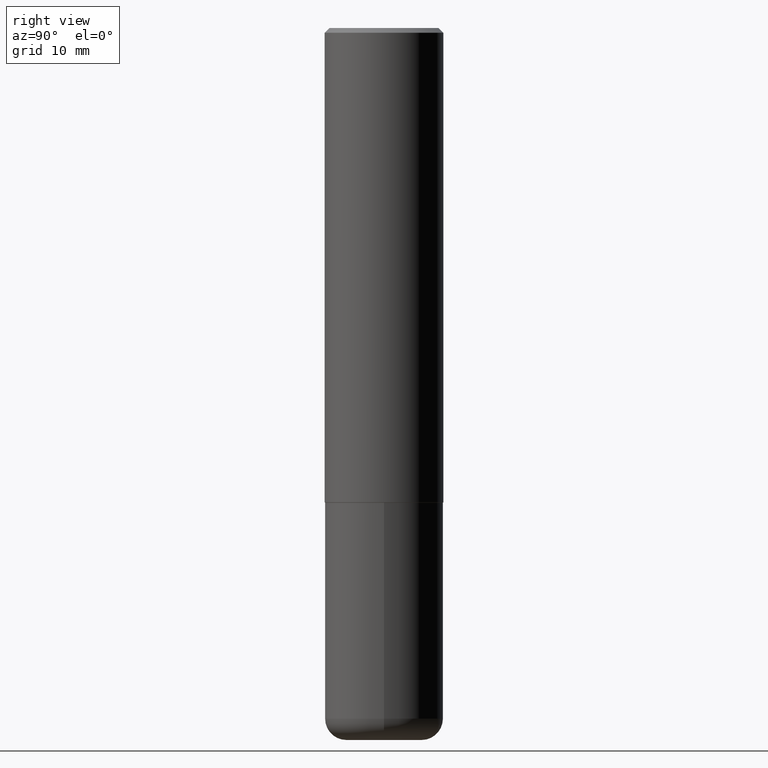
[diagram: clean part render]
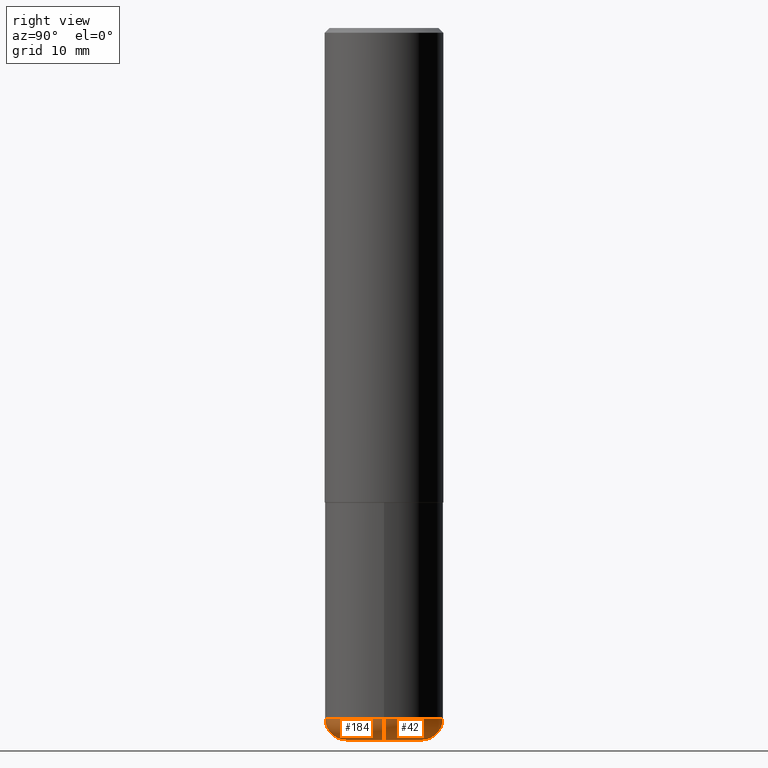
[diagram: same view with one multi-face feature highlighted, each face labeled with its STEP entity id]
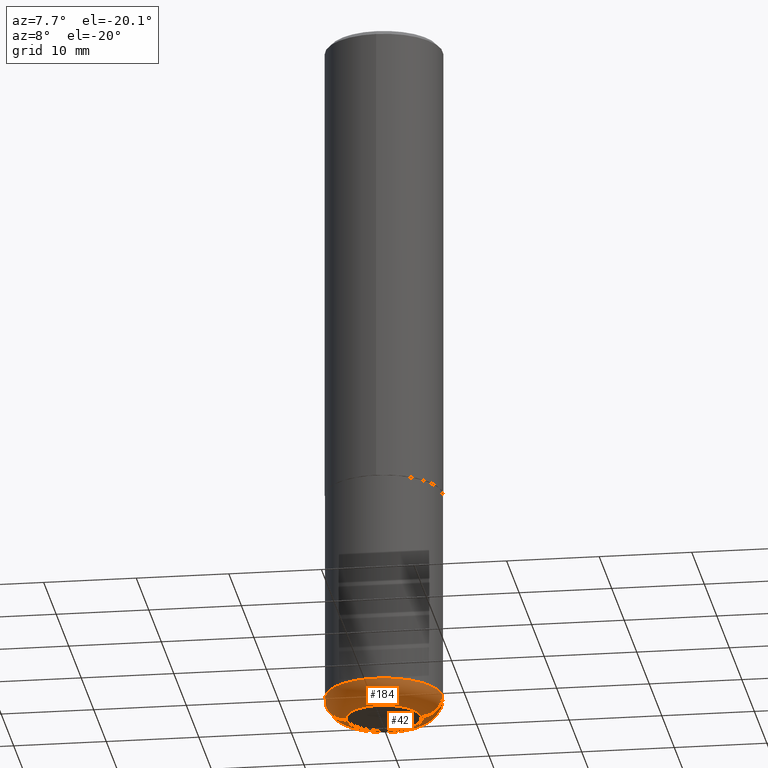
[diagram: same view with one multi-face feature highlighted, each face labeled with its STEP entity id]
A machine part, right view. The highlighted faces form ONE feature: a constant-radius fillet chain: 2 tangent blend faces with common blend radius 2.286 mm. The faces share edges in the B-rep.
A second angle (auxiliary view) of the same feature is appended — it is thin or edge-on in the first view.
Their STEP definitions:
[1] entity #42 (Torus):
#6 = VERTEX_POINT ( 'NONE', #291 ) ;
#23 = CIRCLE ( 'NONE', #174, 0.08999999999999992728 ) ;
#29 = DIRECTION ( 'NONE',  ( -2.445468806185136597E-29, 3.491481338843145583E-15, 1.000000000000000000 ) ) ;
#36 = VERTEX_POINT ( 'NONE', #230 ) ;
#40 = ORIENTED_EDGE ( 'NONE', *, *, #105, .F. ) ;
#42 = ADVANCED_FACE ( 'NONE', ( #60 ), #164, .T. ) ;
#44 = EDGE_LOOP ( 'NONE', ( #153, #160, #357, #40 ) ) ;
#59 = AXIS2_PLACEMENT_3D ( 'NONE', #363, #229, #133 ) ;
#60 = FACE_OUTER_BOUND ( 'NONE', #44, .T. ) ;
#74 = DIRECTION ( 'NONE',  ( -2.445468806185136597E-29, 3.491481338843145583E-15, 1.000000000000000000 ) ) ;
#105 = EDGE_CURVE ( 'NONE', #403, #6, #23, .T. ) ;
#120 = CARTESIAN_POINT ( 'NONE',  ( 0.1600000000000000033, -1.127748472446335797E-14, -2.910000000000000586 ) ) ;
#133 = DIRECTION ( 'NONE',  ( -1.000000000000000000, 7.105427357601006592E-15, 0.000000000000000000 ) ) ;
#134 = CIRCLE ( 'NONE', #59, 0.08999999999999992728 ) ;
#144 = DIRECTION ( 'NONE',  ( 1.000000000000000000, -6.982962677686259611E-15, 0.000000000000000000 ) ) ;
#153 = ORIENTED_EDGE ( 'NONE', *, *, #402, .T. ) ;
#160 = ORIENTED_EDGE ( 'NONE', *, *, #276, .T. ) ;
#164 = TOROIDAL_SURFACE ( 'NONE', #215, 0.1600000000000000033, 0.08999999999999994116 ) ;
#173 = VERTEX_POINT ( 'NONE', #378 ) ;
#174 = AXIS2_PLACEMENT_3D ( 'NONE', #120, #283, #380 ) ;
#176 = CARTESIAN_POINT ( 'NONE',  ( 7.336406418555409790E-29, -1.047444401652943635E-14, -3.000000000000000444 ) ) ;
#197 = CIRCLE ( 'NONE', #317, 0.2500000000000000555 ) ;
#198 = EDGE_CURVE ( 'NONE', #6, #36, #197, .T. ) ;
#215 = AXIS2_PLACEMENT_3D ( 'NONE', #327, #29, #233 ) ;
#229 = DIRECTION ( 'NONE',  ( 7.105427357601001859E-15, 1.000000000000000000, -3.491481338843145583E-15 ) ) ;
#230 = CARTESIAN_POINT ( 'NONE',  ( -0.2500000000000000000, -8.383853856633304202E-15, -2.910000000000000586 ) ) ;
#233 = DIRECTION ( 'NONE',  ( 1.000000000000000000, -6.982962677686265133E-15, 4.883557194083112340E-29 ) ) ;
#241 = AXIS2_PLACEMENT_3D ( 'NONE', #176, #74, #144 ) ;
#274 = CIRCLE ( 'NONE', #241, 0.1600000000000000033 ) ;
#275 = CARTESIAN_POINT ( 'NONE',  ( 0.1600000000000000033, -1.159171804495923808E-14, -3.000000000000000444 ) ) ;
#276 = EDGE_CURVE ( 'NONE', #173, #36, #134, .T. ) ;
#283 = DIRECTION ( 'NONE',  ( -6.982962677686266711E-15, -1.000000000000000000, 3.491481338843145583E-15 ) ) ;
#288 = CARTESIAN_POINT ( 'NONE',  ( 7.116314225998749245E-29, -1.016021069603355467E-14, -2.910000000000000586 ) ) ;
#291 = CARTESIAN_POINT ( 'NONE',  ( 0.2500000000000000000, -1.190595136545512292E-14, -2.910000000000000586 ) ) ;
#317 = AXIS2_PLACEMENT_3D ( 'NONE', #288, #379, #347 ) ;
#327 = CARTESIAN_POINT ( 'NONE',  ( 7.116314225998749245E-29, -1.016021069603355467E-14, -2.910000000000000586 ) ) ;
#347 = DIRECTION ( 'NONE',  ( 1.000000000000000000, -6.982962677686269077E-15, 0.000000000000000000 ) ) ;
#357 = ORIENTED_EDGE ( 'NONE', *, *, #198, .F. ) ;
#363 = CARTESIAN_POINT ( 'NONE',  ( -0.1600000000000000033, -9.023342318817394938E-15, -2.910000000000000586 ) ) ;
#378 = CARTESIAN_POINT ( 'NONE',  ( -0.1600000000000000033, -8.860714747973290413E-15, -3.000000000000000444 ) ) ;
#379 = DIRECTION ( 'NONE',  ( -2.445468806185136597E-29, 3.491481338843145583E-15, 1.000000000000000000 ) ) ;
#380 = DIRECTION ( 'NONE',  ( 1.000000000000000000, -6.982962677686273810E-15, 0.000000000000000000 ) ) ;
#402 = EDGE_CURVE ( 'NONE', #403, #173, #274, .T. ) ;
#403 = VERTEX_POINT ( 'NONE', #275 ) ;
[2] entity #184 (Torus):
#3 = DIRECTION ( 'NONE',  ( 1.000000000000000000, -6.982962677686269077E-15, 0.000000000000000000 ) ) ;
#6 = VERTEX_POINT ( 'NONE', #291 ) ;
#23 = CIRCLE ( 'NONE', #174, 0.08999999999999992728 ) ;
#36 = VERTEX_POINT ( 'NONE', #230 ) ;
#51 = ORIENTED_EDGE ( 'NONE', *, *, #213, .T. ) ;
#56 = DIRECTION ( 'NONE',  ( 1.000000000000000000, -6.982962677686265133E-15, 4.883557194083112340E-29 ) ) ;
#59 = AXIS2_PLACEMENT_3D ( 'NONE', #363, #229, #133 ) ;
#78 = AXIS2_PLACEMENT_3D ( 'NONE', #152, #349, #56 ) ;
#102 = ORIENTED_EDGE ( 'NONE', *, *, #105, .T. ) ;
#103 = DIRECTION ( 'NONE',  ( 1.000000000000000000, -6.982962677686259611E-15, 0.000000000000000000 ) ) ;
#105 = EDGE_CURVE ( 'NONE', #403, #6, #23, .T. ) ;
#120 = CARTESIAN_POINT ( 'NONE',  ( 0.1600000000000000033, -1.127748472446335797E-14, -2.910000000000000586 ) ) ;
#133 = DIRECTION ( 'NONE',  ( -1.000000000000000000, 7.105427357601006592E-15, 0.000000000000000000 ) ) ;
#134 = CIRCLE ( 'NONE', #59, 0.08999999999999992728 ) ;
#137 = CARTESIAN_POINT ( 'NONE',  ( 7.336406418555409790E-29, -1.047444401652943635E-14, -3.000000000000000444 ) ) ;
#152 = CARTESIAN_POINT ( 'NONE',  ( 7.116314225998749245E-29, -1.016021069603355467E-14, -2.910000000000000586 ) ) ;
#167 = EDGE_LOOP ( 'NONE', ( #246, #51, #102, #206 ) ) ;
#173 = VERTEX_POINT ( 'NONE', #378 ) ;
#174 = AXIS2_PLACEMENT_3D ( 'NONE', #120, #283, #380 ) ;
#184 = ADVANCED_FACE ( 'NONE', ( #222 ), #353, .T. ) ;
#206 = ORIENTED_EDGE ( 'NONE', *, *, #253, .F. ) ;
#211 = CIRCLE ( 'NONE', #248, 0.2500000000000000555 ) ;
#213 = EDGE_CURVE ( 'NONE', #173, #403, #242, .T. ) ;
#222 = FACE_OUTER_BOUND ( 'NONE', #167, .T. ) ;
#229 = DIRECTION ( 'NONE',  ( 7.105427357601001859E-15, 1.000000000000000000, -3.491481338843145583E-15 ) ) ;
#230 = CARTESIAN_POINT ( 'NONE',  ( -0.2500000000000000000, -8.383853856633304202E-15, -2.910000000000000586 ) ) ;
#242 = CIRCLE ( 'NONE', #323, 0.1600000000000000033 ) ;
#246 = ORIENTED_EDGE ( 'NONE', *, *, #276, .F. ) ;
#248 = AXIS2_PLACEMENT_3D ( 'NONE', #417, #334, #3 ) ;
#253 = EDGE_CURVE ( 'NONE', #36, #6, #211, .T. ) ;
#275 = CARTESIAN_POINT ( 'NONE',  ( 0.1600000000000000033, -1.159171804495923808E-14, -3.000000000000000444 ) ) ;
#276 = EDGE_CURVE ( 'NONE', #173, #36, #134, .T. ) ;
#283 = DIRECTION ( 'NONE',  ( -6.982962677686266711E-15, -1.000000000000000000, 3.491481338843145583E-15 ) ) ;
#291 = CARTESIAN_POINT ( 'NONE',  ( 0.2500000000000000000, -1.190595136545512292E-14, -2.910000000000000586 ) ) ;
#323 = AXIS2_PLACEMENT_3D ( 'NONE', #137, #324, #103 ) ;
#324 = DIRECTION ( 'NONE',  ( -2.445468806185136597E-29, 3.491481338843145583E-15, 1.000000000000000000 ) ) ;
#334 = DIRECTION ( 'NONE',  ( -2.445468806185136597E-29, 3.491481338843145583E-15, 1.000000000000000000 ) ) ;
#349 = DIRECTION ( 'NONE',  ( -2.445468806185136597E-29, 3.491481338843145583E-15, 1.000000000000000000 ) ) ;
#353 = TOROIDAL_SURFACE ( 'NONE', #78, 0.1600000000000000033, 0.08999999999999994116 ) ;
#363 = CARTESIAN_POINT ( 'NONE',  ( -0.1600000000000000033, -9.023342318817394938E-15, -2.910000000000000586 ) ) ;
#378 = CARTESIAN_POINT ( 'NONE',  ( -0.1600000000000000033, -8.860714747973290413E-15, -3.000000000000000444 ) ) ;
#380 = DIRECTION ( 'NONE',  ( 1.000000000000000000, -6.982962677686273810E-15, 0.000000000000000000 ) ) ;
#403 = VERTEX_POINT ( 'NONE', #275 ) ;
#417 = CARTESIAN_POINT ( 'NONE',  ( 7.116314225998749245E-29, -1.016021069603355467E-14, -2.910000000000000586 ) ) ;